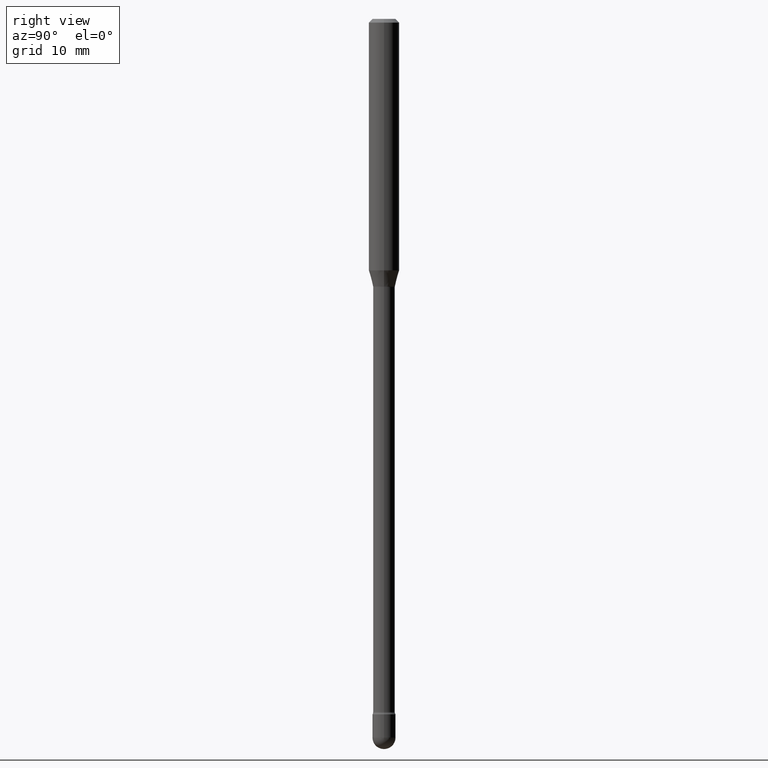
[diagram: clean part render]
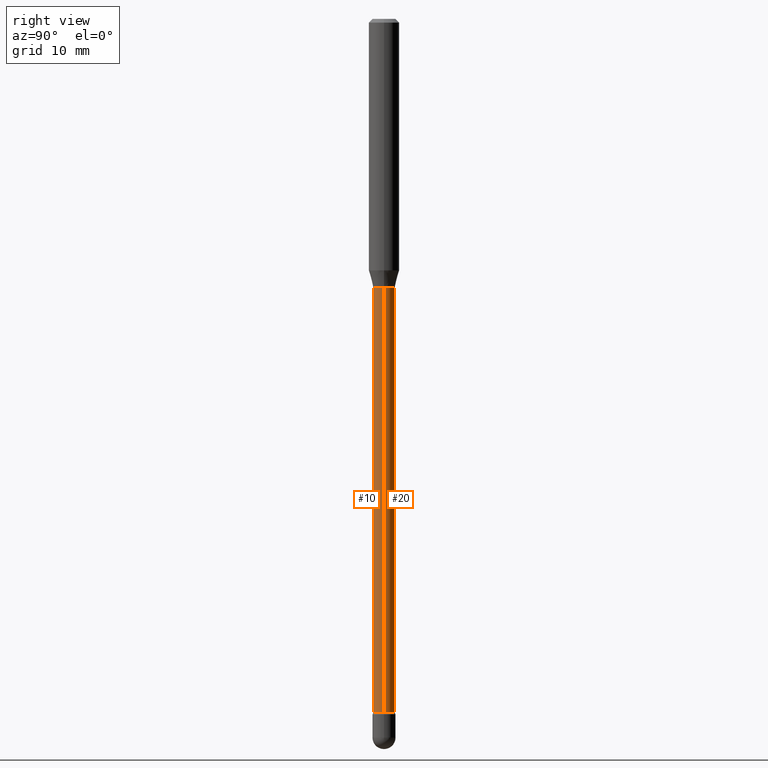
[diagram: same view with one multi-face feature highlighted, each face labeled with its STEP entity id]
A machine part, right view. The highlighted faces form ONE feature: a constant-radius fillet chain: 2 tangent blend faces with common blend radius 1.1341 mm. The faces share edges in the B-rep.
Their STEP definitions:
[1] entity #20 (Cylinder):
#20 = ADVANCED_FACE ( 'NONE', ( #45 ), #94, .T. ) ;
#39 = DIRECTION ( 'NONE',  ( -2.445468806185136597E-29, 3.491481338843145583E-15, 1.000000000000000000 ) ) ;
#45 = FACE_OUTER_BOUND ( 'NONE', #528, .T. ) ;
#47 = CARTESIAN_POINT ( 'NONE',  ( 2.694844967945245742E-29, -3.847524406305537825E-15, -1.101974787463811056 ) ) ;
#50 = AXIS2_PLACEMENT_3D ( 'NONE', #326, #119, #196 ) ;
#72 = VERTEX_POINT ( 'NONE', #185 ) ;
#76 = VECTOR ( 'NONE', #122, 39.37007874015748143 ) ;
#94 = CYLINDRICAL_SURFACE ( 'NONE', #323, 0.04465000000000009933 ) ;
#96 = ORIENTED_EDGE ( 'NONE', *, *, #318, .T. ) ;
#110 = VERTEX_POINT ( 'NONE', #559 ) ;
#119 = DIRECTION ( 'NONE',  ( -2.445468806185136597E-29, 3.491481338843145583E-15, 1.000000000000000000 ) ) ;
#122 = DIRECTION ( 'NONE',  ( -2.445468806185136877E-29, 3.491481338843145188E-15, 1.000000000000000000 ) ) ;
#145 = LINE ( 'NONE', #484, #487 ) ;
#172 = CARTESIAN_POINT ( 'NONE',  ( -0.04465000000000018954, -9.632423302297009755E-15, -2.848203551853162985 ) ) ;
#173 = CIRCLE ( 'NONE', #50, 0.04465000000000018954 ) ;
#185 = CARTESIAN_POINT ( 'NONE',  ( 0.04465000000000018954, -1.025623883408077648E-14, -2.848203551853162985 ) ) ;
#196 = DIRECTION ( 'NONE',  ( 1.000000000000000000, -6.982962677686249356E-15, 0.000000000000000000 ) ) ;
#228 = DIRECTION ( 'NONE',  ( -2.445468806185136597E-29, 3.491481338843145583E-15, 1.000000000000000000 ) ) ;
#234 = ORIENTED_EDGE ( 'NONE', *, *, #356, .T. ) ;
#237 = VERTEX_POINT ( 'NONE', #172 ) ;
#255 = CARTESIAN_POINT ( 'NONE',  ( -0.04465000000000000219, -6.578729646896923703E-15, -1.101974787463811056 ) ) ;
#269 = DIRECTION ( 'NONE',  ( -2.445468806185136877E-29, 3.491481338843145188E-15, 1.000000000000000000 ) ) ;
#273 = CIRCLE ( 'NONE', #290, 0.04465000000000000219 ) ;
#275 = DIRECTION ( 'NONE',  ( 1.000000000000000000, -6.982962677686266711E-15, 4.890776238491175776E-29 ) ) ;
#290 = AXIS2_PLACEMENT_3D ( 'NONE', #47, #228, #322 ) ;
#302 = LINE ( 'NONE', #313, #76 ) ;
#313 = CARTESIAN_POINT ( 'NONE',  ( 0.04465000000000009933, -3.117892835586907926E-16, 4.780733988912482819E-16 ) ) ;
#316 = CARTESIAN_POINT ( 'NONE',  ( -1.169113584055446105E-44, 1.669184350826100908E-30, 4.780733988912460139E-16 ) ) ;
#318 = EDGE_CURVE ( 'NONE', #237, #507, #145, .T. ) ;
#322 = DIRECTION ( 'NONE',  ( 1.000000000000000000, -6.982962677686268288E-15, 0.000000000000000000 ) ) ;
#323 = AXIS2_PLACEMENT_3D ( 'NONE', #316, #39, #275 ) ;
#326 = CARTESIAN_POINT ( 'NONE',  ( 6.965192939722619373E-29, -9.944449550522084107E-15, -2.848203551853162985 ) ) ;
#356 = EDGE_CURVE ( 'NONE', #72, #237, #173, .T. ) ;
#379 = ORIENTED_EDGE ( 'NONE', *, *, #446, .F. ) ;
#393 = EDGE_CURVE ( 'NONE', #72, #110, #302, .T. ) ;
#446 = EDGE_CURVE ( 'NONE', #110, #507, #273, .T. ) ;
#484 = CARTESIAN_POINT ( 'NONE',  ( -0.04465000000000009933, 3.172573315168871151E-16, 4.780733988912438446E-16 ) ) ;
#487 = VECTOR ( 'NONE', #269, 39.37007874015748143 ) ;
#507 = VERTEX_POINT ( 'NONE', #255 ) ;
#528 = EDGE_LOOP ( 'NONE', ( #234, #96, #379, #538 ) ) ;
#538 = ORIENTED_EDGE ( 'NONE', *, *, #393, .F. ) ;
#559 = CARTESIAN_POINT ( 'NONE',  ( 0.04465000000000000219, -4.159313689864229407E-15, -1.101974787463811056 ) ) ;
[2] entity #10 (Cylinder):
#1 = EDGE_CURVE ( 'NONE', #507, #110, #505, .T. ) ;
#10 = ADVANCED_FACE ( 'NONE', ( #482 ), #146, .T. ) ;
#18 = DIRECTION ( 'NONE',  ( 1.000000000000000000, -6.982962677686249356E-15, 0.000000000000000000 ) ) ;
#72 = VERTEX_POINT ( 'NONE', #185 ) ;
#76 = VECTOR ( 'NONE', #122, 39.37007874015748143 ) ;
#88 = AXIS2_PLACEMENT_3D ( 'NONE', #286, #381, #18 ) ;
#100 = DIRECTION ( 'NONE',  ( 1.000000000000000000, -6.982962677686266711E-15, 4.890776238491175776E-29 ) ) ;
#110 = VERTEX_POINT ( 'NONE', #559 ) ;
#122 = DIRECTION ( 'NONE',  ( -2.445468806185136877E-29, 3.491481338843145188E-15, 1.000000000000000000 ) ) ;
#145 = LINE ( 'NONE', #484, #487 ) ;
#146 = CYLINDRICAL_SURFACE ( 'NONE', #459, 0.04465000000000009933 ) ;
#159 = EDGE_CURVE ( 'NONE', #237, #72, #194, .T. ) ;
#172 = CARTESIAN_POINT ( 'NONE',  ( -0.04465000000000018954, -9.632423302297009755E-15, -2.848203551853162985 ) ) ;
#175 = ORIENTED_EDGE ( 'NONE', *, *, #318, .F. ) ;
#185 = CARTESIAN_POINT ( 'NONE',  ( 0.04465000000000018954, -1.025623883408077648E-14, -2.848203551853162985 ) ) ;
#194 = CIRCLE ( 'NONE', #88, 0.04465000000000018954 ) ;
#211 = ORIENTED_EDGE ( 'NONE', *, *, #1, .F. ) ;
#233 = EDGE_LOOP ( 'NONE', ( #175, #347, #339, #211 ) ) ;
#237 = VERTEX_POINT ( 'NONE', #172 ) ;
#248 = AXIS2_PLACEMENT_3D ( 'NONE', #520, #277, #312 ) ;
#255 = CARTESIAN_POINT ( 'NONE',  ( -0.04465000000000000219, -6.578729646896923703E-15, -1.101974787463811056 ) ) ;
#269 = DIRECTION ( 'NONE',  ( -2.445468806185136877E-29, 3.491481338843145188E-15, 1.000000000000000000 ) ) ;
#277 = DIRECTION ( 'NONE',  ( -2.445468806185136597E-29, 3.491481338843145583E-15, 1.000000000000000000 ) ) ;
#286 = CARTESIAN_POINT ( 'NONE',  ( 6.965192939722619373E-29, -9.944449550522084107E-15, -2.848203551853162985 ) ) ;
#302 = LINE ( 'NONE', #313, #76 ) ;
#312 = DIRECTION ( 'NONE',  ( 1.000000000000000000, -6.982962677686268288E-15, 0.000000000000000000 ) ) ;
#313 = CARTESIAN_POINT ( 'NONE',  ( 0.04465000000000009933, -3.117892835586907926E-16, 4.780733988912482819E-16 ) ) ;
#318 = EDGE_CURVE ( 'NONE', #237, #507, #145, .T. ) ;
#339 = ORIENTED_EDGE ( 'NONE', *, *, #393, .T. ) ;
#347 = ORIENTED_EDGE ( 'NONE', *, *, #159, .T. ) ;
#381 = DIRECTION ( 'NONE',  ( -2.445468806185136597E-29, 3.491481338843145583E-15, 1.000000000000000000 ) ) ;
#393 = EDGE_CURVE ( 'NONE', #72, #110, #302, .T. ) ;
#444 = DIRECTION ( 'NONE',  ( -2.445468806185136597E-29, 3.491481338843145583E-15, 1.000000000000000000 ) ) ;
#459 = AXIS2_PLACEMENT_3D ( 'NONE', #560, #444, #100 ) ;
#482 = FACE_OUTER_BOUND ( 'NONE', #233, .T. ) ;
#484 = CARTESIAN_POINT ( 'NONE',  ( -0.04465000000000009933, 3.172573315168871151E-16, 4.780733988912438446E-16 ) ) ;
#487 = VECTOR ( 'NONE', #269, 39.37007874015748143 ) ;
#505 = CIRCLE ( 'NONE', #248, 0.04465000000000000219 ) ;
#507 = VERTEX_POINT ( 'NONE', #255 ) ;
#520 = CARTESIAN_POINT ( 'NONE',  ( 2.694844967945245742E-29, -3.847524406305537825E-15, -1.101974787463811056 ) ) ;
#559 = CARTESIAN_POINT ( 'NONE',  ( 0.04465000000000000219, -4.159313689864229407E-15, -1.101974787463811056 ) ) ;
#560 = CARTESIAN_POINT ( 'NONE',  ( -1.169113584055446105E-44, 1.669184350826100908E-30, 4.780733988912460139E-16 ) ) ;